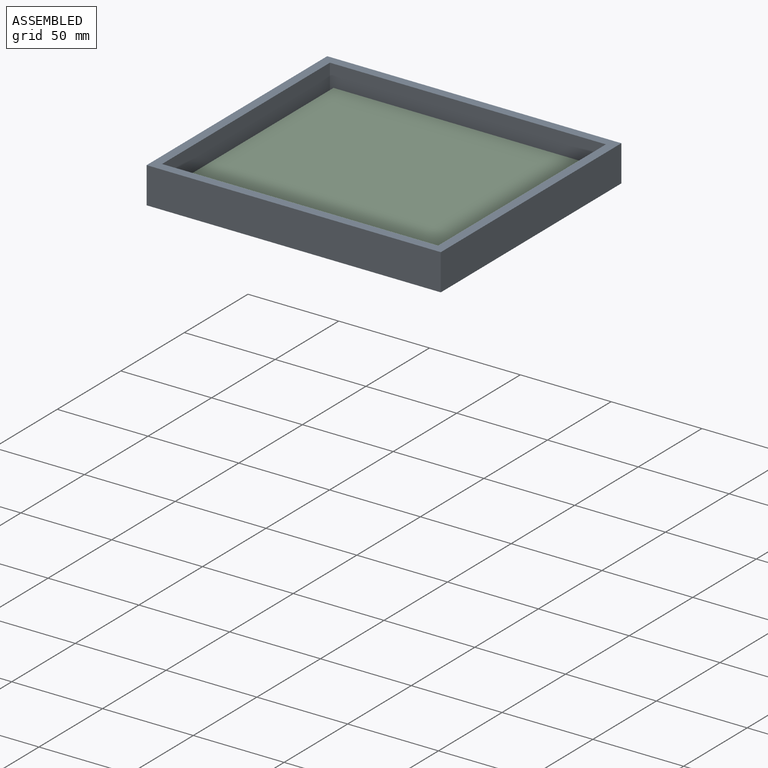
[diagram: assembled view]
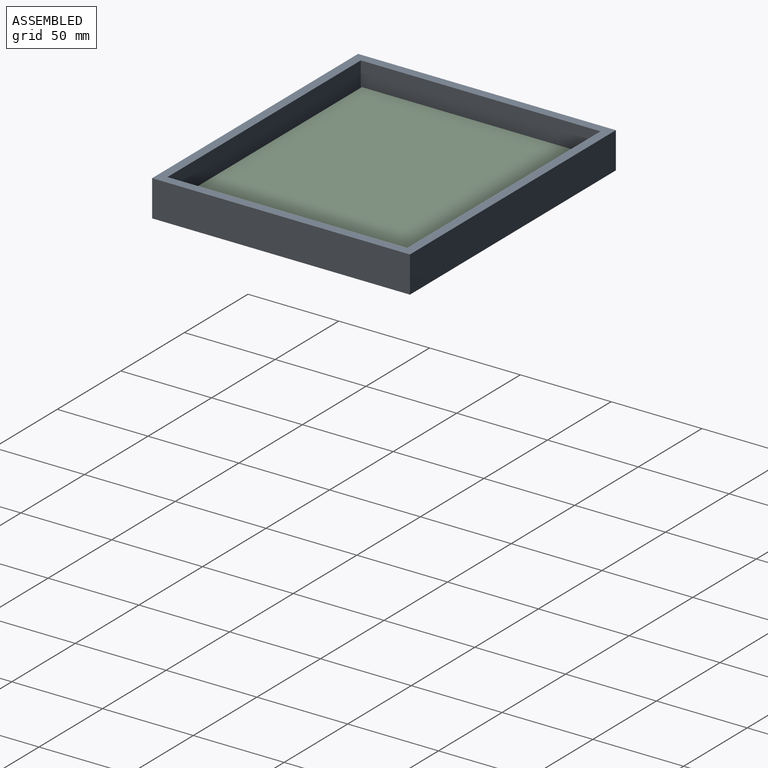
[diagram: assembled view, second angle]
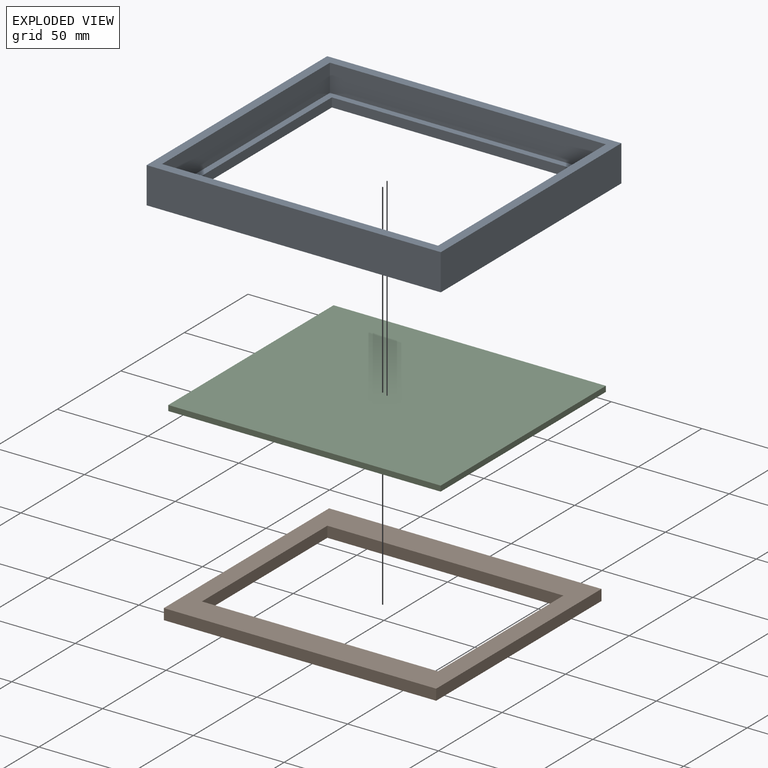
[diagram: exploded view]
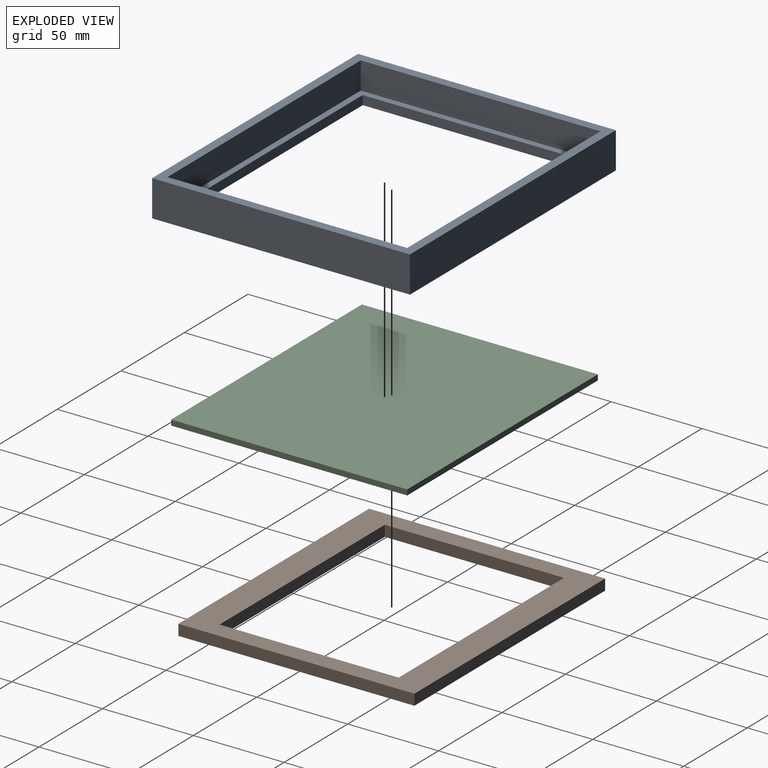
[diagram: exploded view, second angle]
ASSEMBLY  parts=3 mates=2
PART A: 15 faces, bbox 162x142x20 mm
  f0: plane 162x20mm, normal (0,1,0), area 3240mm2, adj f1,f7,f8,f9
  f1: plane 142x20mm, normal (-1,0,0), area 2840mm2, adj f0,f2,f8,f9
  f2: plane 162x20mm, normal (0,-1,0), area 3240mm2, adj f1,f7,f8,f9
  f3: plane 132x15mm, normal (1,0,0), area 1980mm2, adj f4,f6,f8,f14
  f4: plane 152x15mm, normal (0,-1,0), area 2280mm2, adj f3,f5,f8,f14
  f5: plane 132x15mm, normal (-1,0,0), area 1980mm2, adj f4,f6,f8,f14
  f6: plane 152x15mm, normal (0,1,0), area 2280mm2, adj f3,f5,f8,f14
  f7: plane 142x20mm, normal (1,0,0), area 2840mm2, adj f0,f2,f8,f9
  f8: plane 162x142mm, normal (0,0,1), area 2940mm2, adj f0,f1,f2,f3,f4,f5,f6,f7
  f9: plane 162x142mm, normal (0,0,-1), area 4879mm2, adj f0,f1,f2,f7,f10,f11,f12,f13
  f10: plane 125x5mm, normal (1,0,0), area 625mm2, adj f9,f11,f13,f14
  f11: plane 145x5mm, normal (0,-1,0), area 725mm2, adj f9,f10,f12,f14
  f12: plane 125x5mm, normal (-1,0,0), area 625mm2, adj f9,f11,f13,f14
  f13: plane 145x5mm, normal (0,1,0), area 725mm2, adj f9,f10,f12,f14
  f14: plane 152x132mm, normal (0,0,1), area 1939mm2, adj f3,f4,f5,f6,f10,f11,f12,f13
PART B: 10 faces, bbox 150x130x6 mm
  f0: plane 150x6mm, normal (0,-1,0), area 900mm2, adj f1,f7,f8,f9
  f1: plane 130x6mm, normal (1,0,0), area 780mm2, adj f0,f2,f8,f9
  f2: plane 150x6mm, normal (0,1,0), area 900mm2, adj f1,f7,f8,f9
  f3: plane 98.67x6mm, normal (1,0,0), area 592mm2, adj f4,f6,f8,f9
  f4: plane 130x6mm, normal (0,-1,0), area 780mm2, adj f3,f5,f8,f9
  f5: plane 98.67x6mm, normal (-1,0,0), area 592mm2, adj f4,f6,f8,f9
  f6: plane 130x6mm, normal (0,1,0), area 780mm2, adj f3,f5,f8,f9
  f7: plane 130x6mm, normal (-1,0,0), area 780mm2, adj f0,f2,f8,f9
  f8: plane 150x130mm, normal (0,0,1), area 6672.3mm2, adj f0,f1,f2,f3,f4,f5,f6,f7
  f9: plane 150x130mm, normal (0,0,-1), area 6672.3mm2, adj f0,f1,f2,f3,f4,f5,f6,f7
PART C: 6 faces, bbox 150x130x3 mm
  f0: plane 150x3mm, normal (0,-1,0), area 450mm2, adj f1,f3,f4,f5
  f1: plane 130x3mm, normal (1,0,0), area 390mm2, adj f0,f2,f4,f5
  f2: plane 150x3mm, normal (0,1,0), area 450mm2, adj f1,f3,f4,f5
  f3: plane 130x3mm, normal (-1,0,0), area 390mm2, adj f0,f2,f4,f5
  f4: plane 150x130mm, normal (0,0,1), area 19500mm2, adj f0,f1,f2,f3
  f5: plane 150x130mm, normal (0,0,-1), area 19500mm2, adj f0,f1,f2,f3
PLACE A at identity
PLACE B t=(289.38,-2.6,-1)mm
PLACE C t=(267.89,157.86,5)mm
MATE fastened B.f8 <-> A.f14  axis (0,0,1) through (72.5,-62.5,5)mm
MATE fastened C.f5 <-> A.f14  axis (0,0,-1) through (76,66,5)mm
